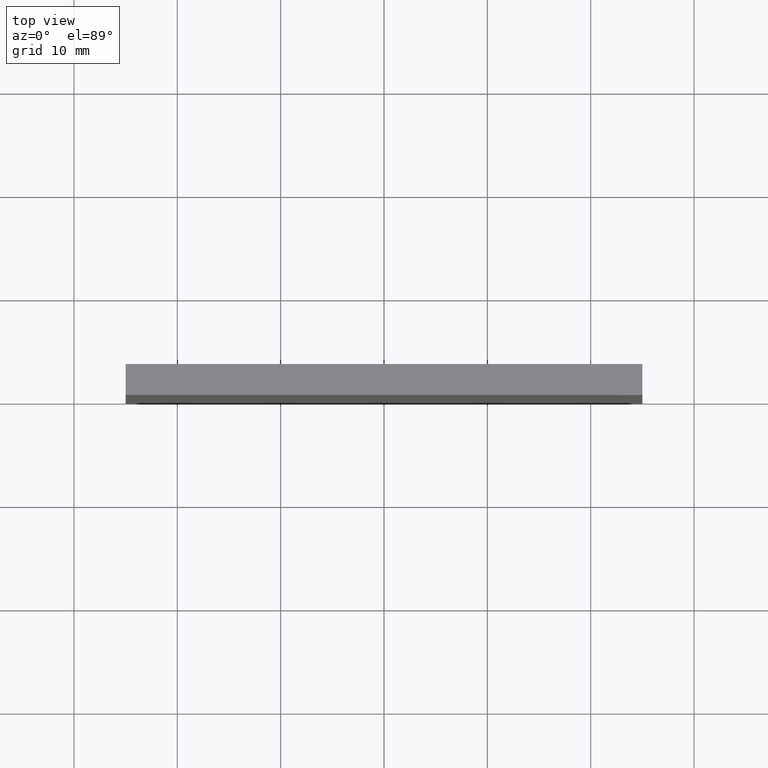
[diagram: clean part render]
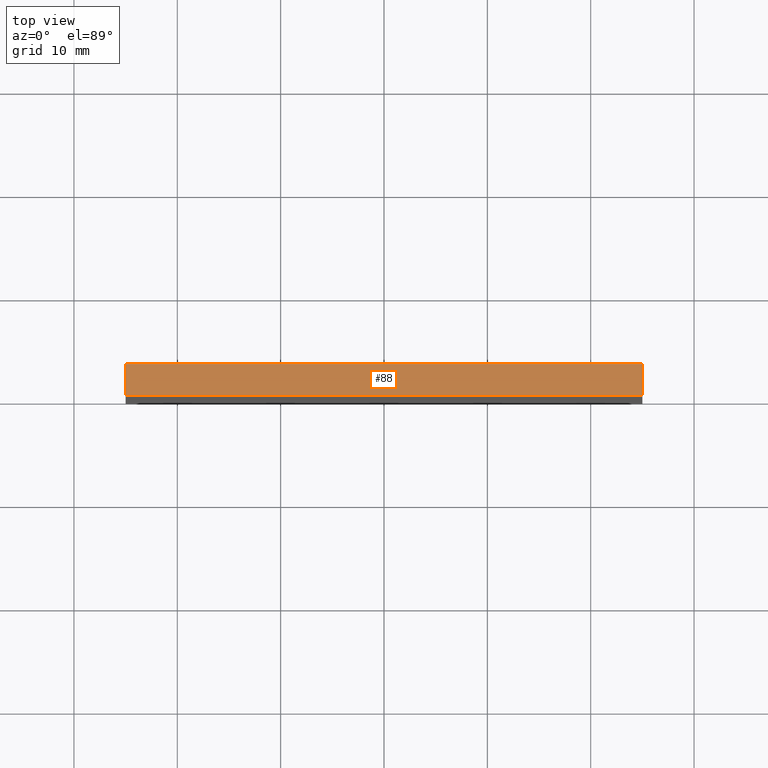
[diagram: same view with one face highlighted and labeled with its STEP entity id]
A machine part, top view. The second image highlights one B-rep face of the part: STEP entity #88.
In plain terms, the highlighted planar face has unit normal (0, 0, -1).
Its self-contained STEP definition (entity closure, byte-faithful):
#7 = LINE ( 'NONE', #42, #78 ) ;
#9 = EDGE_CURVE ( 'NONE', #171, #57, #113, .T. ) ;
#10 = CARTESIAN_POINT ( 'NONE',  ( -24.99999999999999300, 3.000000000000000000, 25.00000000000000700 ) ) ;
#21 = VERTEX_POINT ( 'NONE', #36 ) ;
#24 = CARTESIAN_POINT ( 'NONE',  ( -24.99999999999999300, 3.000000000000000000, 25.00000000000000700 ) ) ;
#25 = AXIS2_PLACEMENT_3D ( 'NONE', #33, #179, #66 ) ;
#33 = CARTESIAN_POINT ( 'NONE',  ( -24.99999999999999300, 3.000000000000000000, 25.00000000000000700 ) ) ;
#36 = CARTESIAN_POINT ( 'NONE',  ( 25.00000000000000700, 3.000000000000000000, 25.00000000000000700 ) ) ;
#42 = CARTESIAN_POINT ( 'NONE',  ( 25.00000000000000700, 3.000000000000000000, 25.00000000000000700 ) ) ;
#57 = VERTEX_POINT ( 'NONE', #104 ) ;
#65 = CARTESIAN_POINT ( 'NONE',  ( -24.99999999999999300, 0.0000000000000000000, 25.00000000000000700 ) ) ;
#66 = DIRECTION ( 'NONE',  ( -1.000000000000000000, 0.0000000000000000000, -0.0000000000000000000 ) ) ;
#70 = PLANE ( 'NONE',  #25 ) ;
#77 = LINE ( 'NONE', #199, #139 ) ;
#78 = VECTOR ( 'NONE', #157, 1000.000000000000000 ) ;
#85 = ORIENTED_EDGE ( 'NONE', *, *, #159, .F. ) ;
#87 = FACE_OUTER_BOUND ( 'NONE', #121, .T. ) ;
#88 = ADVANCED_FACE ( 'NONE', ( #87 ), #70, .F. ) ;
#102 = VECTOR ( 'NONE', #166, 1000.000000000000000 ) ;
#104 = CARTESIAN_POINT ( 'NONE',  ( 25.00000000000000700, 0.0000000000000000000, 25.00000000000000700 ) ) ;
#106 = CARTESIAN_POINT ( 'NONE',  ( -24.99999999999999300, 0.0000000000000000000, 25.00000000000000700 ) ) ;
#110 = ORIENTED_EDGE ( 'NONE', *, *, #9, .T. ) ;
#113 = LINE ( 'NONE', #65, #102 ) ;
#121 = EDGE_LOOP ( 'NONE', ( #110, #85, #135, #154 ) ) ;
#128 = VERTEX_POINT ( 'NONE', #24 ) ;
#135 = ORIENTED_EDGE ( 'NONE', *, *, #163, .F. ) ;
#139 = VECTOR ( 'NONE', #186, 1000.000000000000000 ) ;
#143 = DIRECTION ( 'NONE',  ( -0.0000000000000000000, -1.000000000000000000, -0.0000000000000000000 ) ) ;
#151 = EDGE_CURVE ( 'NONE', #128, #171, #198, .T. ) ;
#154 = ORIENTED_EDGE ( 'NONE', *, *, #151, .T. ) ;
#157 = DIRECTION ( 'NONE',  ( -0.0000000000000000000, -1.000000000000000000, -0.0000000000000000000 ) ) ;
#159 = EDGE_CURVE ( 'NONE', #21, #57, #7, .T. ) ;
#163 = EDGE_CURVE ( 'NONE', #128, #21, #77, .T. ) ;
#166 = DIRECTION ( 'NONE',  ( 1.000000000000000000, 0.0000000000000000000, 0.0000000000000000000 ) ) ;
#171 = VERTEX_POINT ( 'NONE', #106 ) ;
#179 = DIRECTION ( 'NONE',  ( 0.0000000000000000000, 0.0000000000000000000, -1.000000000000000000 ) ) ;
#186 = DIRECTION ( 'NONE',  ( 1.000000000000000000, 0.0000000000000000000, 0.0000000000000000000 ) ) ;
#195 = VECTOR ( 'NONE', #143, 1000.000000000000000 ) ;
#198 = LINE ( 'NONE', #10, #195 ) ;
#199 = CARTESIAN_POINT ( 'NONE',  ( -24.99999999999999300, 3.000000000000000000, 25.00000000000000700 ) ) ;